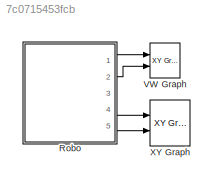
MODEL slx_7c0715453fcb
KIND model
CONFIG AbsTol = auto
CONFIG EnableMultiTasking = off
CONFIG FixedStep = 0.04
CONFIG MaxStep = auto
CONFIG MinStep = auto
CONFIG RelTol = 1e-3
CONFIG SampleTimeConstraint = Unconstrained
CONFIG Solver = ode4
CONFIG SolverName = ode4
CONFIG StartTime = 0.0
CONFIG StopTime = 100
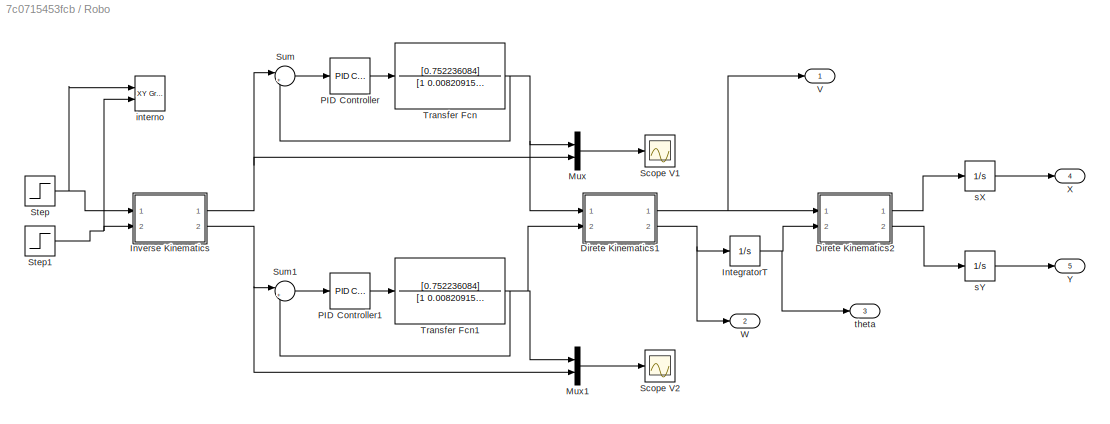
BLOCK [SubSystem] Robo
  Ports = [0, 5]
  RequestExecContextInheritance = off
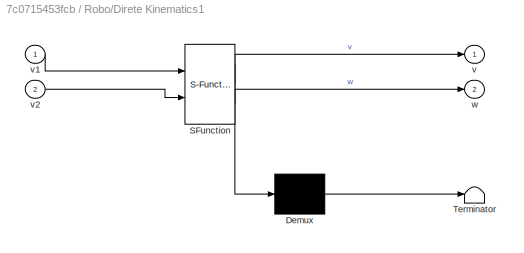
BLOCK [SubSystem] Robo/Direte Kinematics1
  ErrorFcn = Stateflow.Translate.translate
  PermitHierarchicalResolution = ExplicitOnly
  Ports = [2, 2]
  RequestExecContextInheritance = off
  SFBlockType = MATLAB Function
  TreatAsAtomicUnit = on
BLOCK [Demux] Robo/Direte Kinematics1/ Demux 
  Outputs = 1
  Ports = [1, 1]
BLOCK [S-Function] Robo/Direte Kinematics1/ SFunction 
  EnableBusSupport = on
  FunctionName = sf_sfun
  PortCounts = [2 3]
  Ports = [2, 3]
  SFcnIsStateOwnerBlock = off
  SFunctionDeploymentMode = off
  Tag = Stateflow S-Function modeloSimulink 1
BLOCK [Terminator] Robo/Direte Kinematics1/ Terminator 
BLOCK [Outport] Robo/Direte Kinematics1/v
  IconDisplay = Port number
BLOCK [Inport] Robo/Direte Kinematics1/v1
  IconDisplay = Port number
BLOCK [Inport] Robo/Direte Kinematics1/v2
  IconDisplay = Port number
  Port = 2
BLOCK [Outport] Robo/Direte Kinematics1/w
  IconDisplay = Port number
  Port = 2
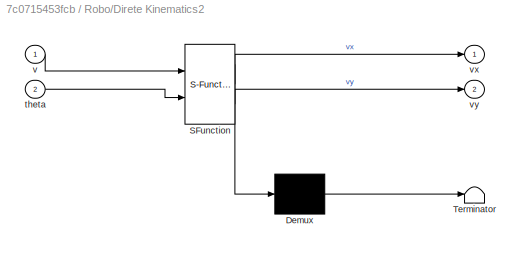
BLOCK [SubSystem] Robo/Direte Kinematics2
  ErrorFcn = Stateflow.Translate.translate
  PermitHierarchicalResolution = ExplicitOnly
  Ports = [2, 2]
  RequestExecContextInheritance = off
  SFBlockType = MATLAB Function
  TreatAsAtomicUnit = on
BLOCK [Demux] Robo/Direte Kinematics2/ Demux 
  Outputs = 1
  Ports = [1, 1]
BLOCK [S-Function] Robo/Direte Kinematics2/ SFunction 
  EnableBusSupport = on
  FunctionName = sf_sfun
  PortCounts = [2 3]
  Ports = [2, 3]
  SFcnIsStateOwnerBlock = off
  SFunctionDeploymentMode = off
  Tag = Stateflow S-Function modeloSimulink 3
BLOCK [Terminator] Robo/Direte Kinematics2/ Terminator 
BLOCK [Inport] Robo/Direte Kinematics2/theta
  IconDisplay = Port number
  Port = 2
BLOCK [Inport] Robo/Direte Kinematics2/v
  IconDisplay = Port number
BLOCK [Outport] Robo/Direte Kinematics2/vx
  IconDisplay = Port number
BLOCK [Outport] Robo/Direte Kinematics2/vy
  IconDisplay = Port number
  Port = 2
BLOCK [Integrator] Robo/IntegratorT
  Ports = [1, 1]
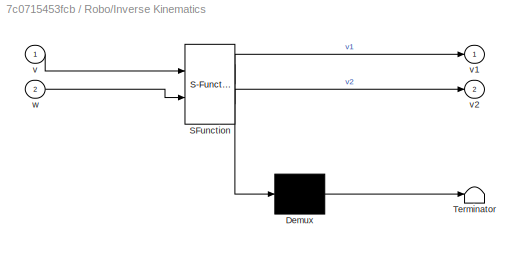
BLOCK [SubSystem] Robo/Inverse Kinematics
  ErrorFcn = Stateflow.Translate.translate
  PermitHierarchicalResolution = ExplicitOnly
  Ports = [2, 2]
  RequestExecContextInheritance = off
  SFBlockType = MATLAB Function
  TreatAsAtomicUnit = on
BLOCK [Demux] Robo/Inverse Kinematics/ Demux 
  Outputs = 1
  Ports = [1, 1]
BLOCK [S-Function] Robo/Inverse Kinematics/ SFunction 
  EnableBusSupport = on
  FunctionName = sf_sfun
  PortCounts = [2 3]
  Ports = [2, 3]
  SFcnIsStateOwnerBlock = off
  SFunctionDeploymentMode = off
  Tag = Stateflow S-Function modeloSimulink 2
BLOCK [Terminator] Robo/Inverse Kinematics/ Terminator 
BLOCK [Inport] Robo/Inverse Kinematics/v
  IconDisplay = Port number
BLOCK [Outport] Robo/Inverse Kinematics/v1
  IconDisplay = Port number
BLOCK [Outport] Robo/Inverse Kinematics/v2
  IconDisplay = Port number
  Port = 2
BLOCK [Inport] Robo/Inverse Kinematics/w
  IconDisplay = Port number
  Port = 2
BLOCK [Mux] Robo/Mux
  DisplayOption = bar
  Inputs = 2
  Ports = [2, 1]
BLOCK [Mux] Robo/Mux1
  DisplayOption = bar
  Inputs = 2
  Ports = [2, 1]
BLOCK [Reference] Robo/PID Controller  REF=simulink/Continuous/PID Controller
  Ports = [1, 1]
  SourceBlock = simulink/Continuous/PID Controller
  SourceProductBaseCode = SL
  SourceProductName = Simulink
  SourceType = PID 1dof
BLOCK [Reference] Robo/PID Controller1  REF=simulink/Continuous/PID Controller
  Ports = [1, 1]
  SourceBlock = simulink/Continuous/PID Controller
  SourceProductBaseCode = SL
  SourceProductName = Simulink
  SourceType = PID 1dof
BLOCK [Scope] Robo/Scope V1
  Floating = off
  NumInputPorts = 1
  Ports = [1]
  ScopeSpecificationString = Simulink.scopes.TimeScopeBlockCfg('CurrentConfiguration', extmgr.ConfigurationSet(extmgr.Configuration('Core','General UI',true),extmgr.Configuration('Core','Source UI',true),extmgr.Configuration('Sources','WiredSimulink',true),extmgr.Configuration('Visuals','Time Domain',true,'SerializedDisplays',{struct('MinYLimReal','-16.16962','MaxYLimReal','1.79662','YLabelReal','','MinYLimMag','0.00000','Max...<+1414ch>
BLOCK [Scope] Robo/Scope V2
  Floating = off
  NumInputPorts = 1
  Ports = [1]
  ScopeSpecificationString = Simulink.scopes.TimeScopeBlockCfg('CurrentConfiguration', extmgr.ConfigurationSet(extmgr.Configuration('Core','General UI',true),extmgr.Configuration('Core','Source UI',true),extmgr.Configuration('Sources','WiredSimulink',true,'DataLoggingVariableName','ScopeData1'),extmgr.Configuration('Visuals','Time Domain',true,'SerializedDisplays',{struct('MinYLimReal','-2.0479','MaxYLimReal','18.4311','YLabe...<+1421ch>
BLOCK [Step] Robo/Step
  SampleTime = 0
BLOCK [Step] Robo/Step1
  After = 90
  SampleTime = 0
BLOCK [Sum] Robo/Sum
  IconShape = round
  InputSameDT = off
  Inputs = |+-
  OutDataTypeStr = Inherit: Inherit via internal rule
  Ports = [2, 1]
  SaturateOnIntegerOverflow = off
BLOCK [Sum] Robo/Sum1
  IconShape = round
  InputSameDT = off
  Inputs = |+-
  OutDataTypeStr = Inherit: Inherit via internal rule
  Ports = [2, 1]
  SaturateOnIntegerOverflow = off
BLOCK [TransferFcn] Robo/Transfer Fcn
  Denominator = [1 0.008209152]
  Numerator = [0.752236084]
BLOCK [TransferFcn] Robo/Transfer Fcn1
  Denominator = [1 0.008209152]
  Numerator = [0.752236084]
BLOCK [Outport] Robo/V
  IconDisplay = Port number
BLOCK [Outport] Robo/W
  IconDisplay = Port number
  Port = 2
BLOCK [Outport] Robo/X
  IconDisplay = Port number
  Port = 4
BLOCK [Outport] Robo/Y
  IconDisplay = Port number
  Port = 5
BLOCK [Reference] Robo/interno  REF=simulink/Sinks/XY Graph
  Ports = [2]
  SourceBlock = simulink/Sinks/XY Graph
  SourceProductBaseCode = SL
  SourceProductName = Simulink
  SourceType = XY scope.
BLOCK [Integrator] Robo/sX
  Ports = [1, 1]
BLOCK [Integrator] Robo/sY
  Ports = [1, 1]
BLOCK [Outport] Robo/theta
  IconDisplay = Port number
  Port = 3
BLOCK [Reference] VW Graph  REF=simulink/Sinks/XY Graph
  Ports = [2]
  SourceBlock = simulink/Sinks/XY Graph
  SourceProductBaseCode = SL
  SourceProductName = Simulink
  SourceType = XY scope.
BLOCK [Reference] XY Graph  REF=simulink/Sinks/XY Graph
  Ports = [2]
  SourceBlock = simulink/Sinks/XY Graph
  SourceProductBaseCode = SL
  SourceProductName = Simulink
  SourceType = XY scope.
NET Robo/Direte Kinematics1:1 -> Robo/Direte Kinematics2:1, Robo/V:1
NET Robo/Direte Kinematics1:2 -> Robo/IntegratorT:1, Robo/W:1
LINE Robo/Direte Kinematics2:1 -> Robo/sX:1
LINE Robo/Direte Kinematics2:2 -> Robo/sY:1
NET Robo/IntegratorT:1 -> Robo/Direte Kinematics2:2, Robo/theta:1
NET Robo/Inverse Kinematics:1 -> Robo/Mux:2, Robo/Sum:1
NET Robo/Inverse Kinematics:2 -> Robo/Mux1:2, Robo/Sum1:1
LINE Robo/Mux1:1 -> Robo/Scope V2:1
LINE Robo/Mux:1 -> Robo/Scope V1:1
LINE Robo/PID Controller1:1 -> Robo/Transfer Fcn1:1
LINE Robo/PID Controller:1 -> Robo/Transfer Fcn:1
NET Robo/Step1:1 -> Robo/Inverse Kinematics:2, Robo/interno:2
NET Robo/Step:1 -> Robo/Inverse Kinematics:1, Robo/interno:1
LINE Robo/Sum1:1 -> Robo/PID Controller1:1
LINE Robo/Sum:1 -> Robo/PID Controller:1
NET Robo/Transfer Fcn1:1 -> Robo/Direte Kinematics1:2, Robo/Mux1:1, Robo/Sum1:2
NET Robo/Transfer Fcn:1 -> Robo/Direte Kinematics1:1, Robo/Mux:1, Robo/Sum:2
LINE Robo/sX:1 -> Robo/X:1
LINE Robo/sY:1 -> Robo/Y:1
LINE Robo:1 -> VW Graph:1
LINE Robo:2 -> VW Graph:2
LINE Robo:4 -> XY Graph:1
LINE Robo:5 -> XY Graph:2
note: NET lines group one-source signal fan-out (src -> all destinations, sorted); 1:1 wires keep LINE
CHART Robo/Direte Kinematics1 states=1 transitions=1
  STATE_LABEL 'eML_blk_kernel()'
  STATE_LABEL 'SCRIPT:\n%function y = fcn(u)\nfunction [v,w] = fcn(v1,v2)\n    L = 2 * 0.17;\n    v = (v1 + v2)/2;\n    w = (v1 - v2)/L;\nend\n'
CHART Robo/Inverse Kinematics states=1 transitions=1
  STATE_LABEL 'eML_blk_kernel()'
  STATE_LABEL 'SCRIPT:\n%function y = fcn(u)\nfunction [v1,v2] = fcn(v,w)\n    L = 2 * 0.17;\n    v1 = v - w * L/2;\n    v2 = v + w * L/2;\nend\n\n'
CHART Robo/Direte Kinematics2 states=1 transitions=1
  STATE_LABEL 'eML_blk_kernel()'
  STATE_LABEL 'SCRIPT:\n%function y = fcn(u)\nfunction [vx,vy] = fcn(v,theta)\n    vx = v * cos(deg2rad(theta));\n    vy = v * sin(deg2rad(theta));\nend'
